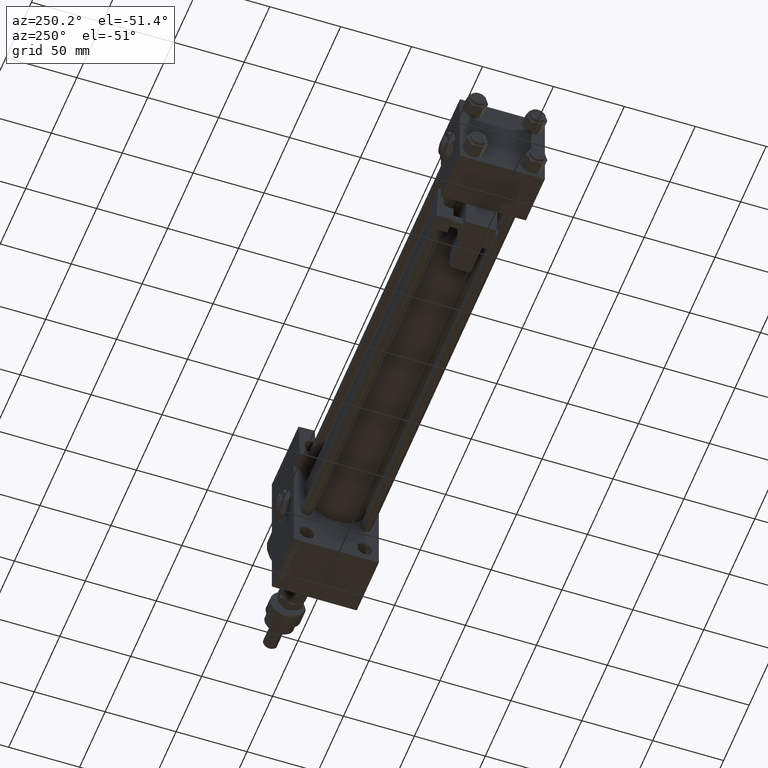
[diagram: clean part render]
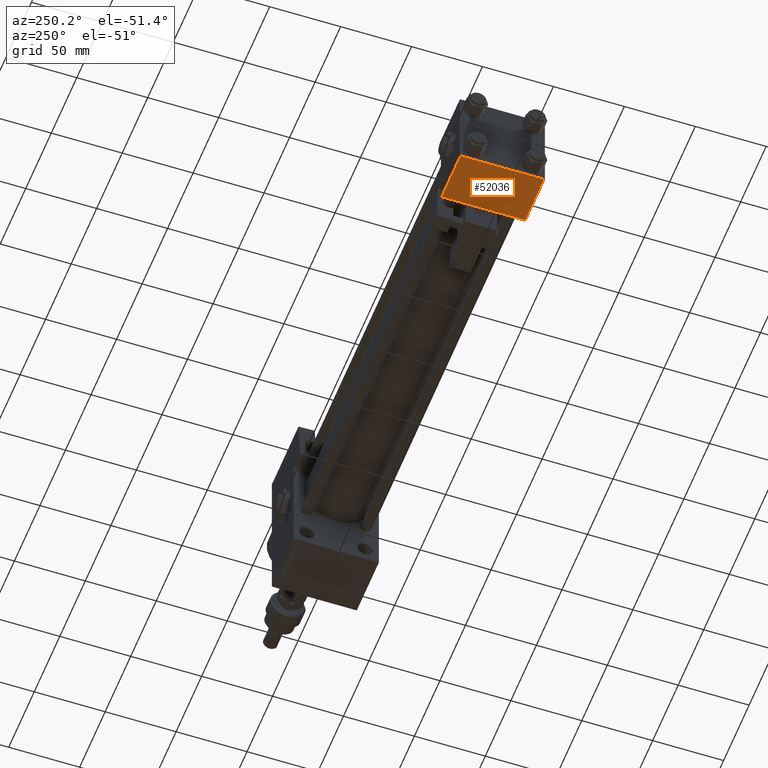
[diagram: same view with one face highlighted and labeled with its STEP entity id]
A machine part, auxiliary view. The second image highlights one B-rep face of the part: STEP entity #52036.
In plain terms, the highlighted planar face has unit normal (0, 0, -1).
Its self-contained STEP definition (entity closure, byte-faithful):
#1872 = ORIENTED_EDGE ( 'NONE', *, *, #19049, .T. ) ;
#3832 = DIRECTION ( 'NONE',  ( 0.000000000000000000, -1.000000000000000000, -1.156482317317871725E-16 ) ) ;
#4231 = EDGE_CURVE ( 'NONE', #47230, #14900, #31618, .T. ) ;
#4968 = VERTEX_POINT ( 'NONE', #41883 ) ;
#6089 = CARTESIAN_POINT ( 'NONE',  ( 37.00000000000000000, 29.99999999999999289, -30.00000000000000000 ) ) ;
#6661 = VERTEX_POINT ( 'NONE', #39876 ) ;
#7779 = VECTOR ( 'NONE', #53840, 1000.000000000000000 ) ;
#8229 = EDGE_LOOP ( 'NONE', ( #20917, #28502, #9707, #1872 ) ) ;
#9402 = PLANE ( 'NONE',  #28176 ) ;
#9707 = ORIENTED_EDGE ( 'NONE', *, *, #4231, .T. ) ;
#10586 = VECTOR ( 'NONE', #3832, 1000.000000000000000 ) ;
#11535 = CARTESIAN_POINT ( 'NONE',  ( 0.000000000000000000, 29.99999999999999289, -30.00000000000000000 ) ) ;
#11555 = CARTESIAN_POINT ( 'NONE',  ( 37.00000000000000000, 29.49999999999997868, -30.00000000000000000 ) ) ;
#13253 = CARTESIAN_POINT ( 'NONE',  ( 37.00000000000000000, 29.99999999999999289, -30.00000000000000000 ) ) ;
#13790 = EDGE_CURVE ( 'NONE', #6661, #4968, #32410, .T. ) ;
#14900 = VERTEX_POINT ( 'NONE', #35115 ) ;
#18982 = DIRECTION ( 'NONE',  ( 0.000000000000000000, -1.000000000000000000, -1.156482317317871725E-16 ) ) ;
#19049 = EDGE_CURVE ( 'NONE', #14900, #4968, #33627, .T. ) ;
#20917 = ORIENTED_EDGE ( 'NONE', *, *, #13790, .F. ) ;
#21540 = DIRECTION ( 'NONE',  ( -1.000000000000000000, 0.000000000000000000, 0.000000000000000000 ) ) ;
#23910 = LINE ( 'NONE', #11555, #7779 ) ;
#25876 = DIRECTION ( 'NONE',  ( 0.000000000000000000, 1.156482317317871725E-16, -1.000000000000000000 ) ) ;
#28176 = AXIS2_PLACEMENT_3D ( 'NONE', #13253, #25876, #42621 ) ;
#28502 = ORIENTED_EDGE ( 'NONE', *, *, #42983, .T. ) ;
#31618 = LINE ( 'NONE', #6089, #34872 ) ;
#32410 = LINE ( 'NONE', #11535, #10586 ) ;
#33627 = LINE ( 'NONE', #37751, #48516 ) ;
#34040 = CARTESIAN_POINT ( 'NONE',  ( 37.00000000000000000, 29.49999999999997868, -30.00000000000000000 ) ) ;
#34872 = VECTOR ( 'NONE', #18982, 1000.000000000000000 ) ;
#35115 = CARTESIAN_POINT ( 'NONE',  ( 37.00000000000000000, -29.50000000000000000, -30.00000000000000711 ) ) ;
#37751 = CARTESIAN_POINT ( 'NONE',  ( 0.000000000000000000, -29.50000000000001066, -30.00000000000000711 ) ) ;
#39876 = CARTESIAN_POINT ( 'NONE',  ( 0.000000000000000000, 29.49999999999997868, -30.00000000000000000 ) ) ;
#41883 = CARTESIAN_POINT ( 'NONE',  ( 0.000000000000000000, -29.50000000000000000, -30.00000000000000711 ) ) ;
#42621 = DIRECTION ( 'NONE',  ( 0.000000000000000000, 1.000000000000000000, 1.156482317317871725E-16 ) ) ;
#42983 = EDGE_CURVE ( 'NONE', #6661, #47230, #23910, .T. ) ;
#47230 = VERTEX_POINT ( 'NONE', #34040 ) ;
#48516 = VECTOR ( 'NONE', #21540, 1000.000000000000000 ) ;
#50868 = FACE_OUTER_BOUND ( 'NONE', #8229, .T. ) ;
#52036 = ADVANCED_FACE ( 'NONE', ( #50868 ), #9402, .T. ) ;
#53840 = DIRECTION ( 'NONE',  ( 1.000000000000000000, 0.000000000000000000, 0.000000000000000000 ) ) ;